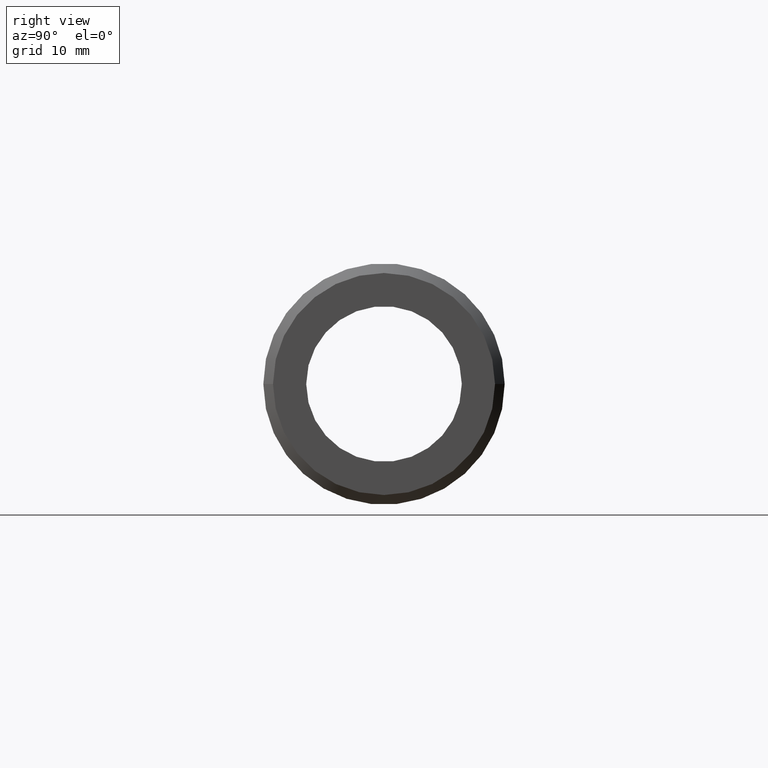
[diagram: clean part render]
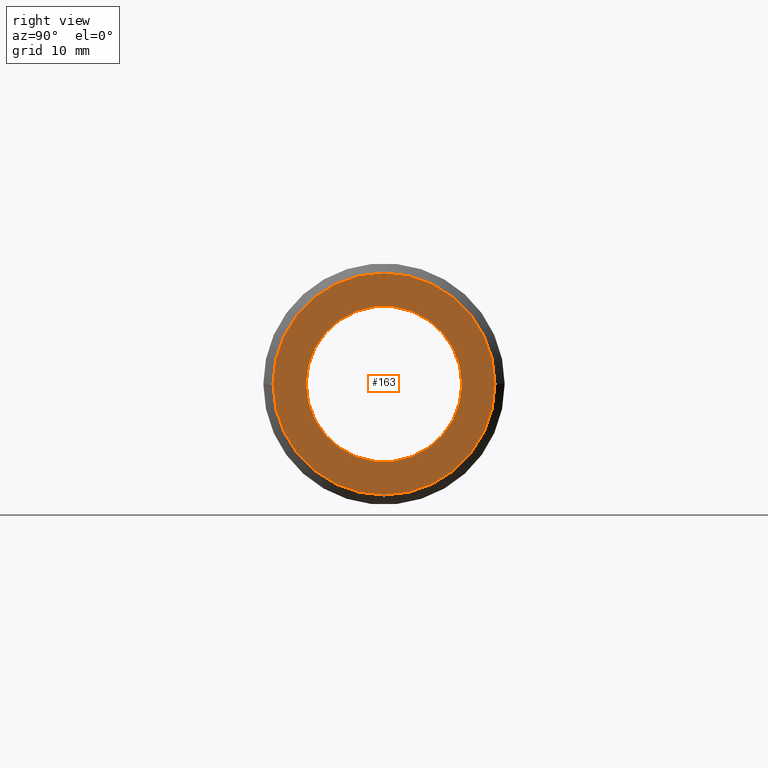
[diagram: same view with one face highlighted and labeled with its STEP entity id]
A machine part, right view. The second image highlights one B-rep face of the part: STEP entity #163.
In plain terms, the highlighted planar face has unit normal (-1, -0, 0).
Its self-contained STEP definition (entity closure, byte-faithful):
#4 = AXIS2_PLACEMENT_3D ( 'NONE', #25, #315, #213 ) ;
#19 = EDGE_LOOP ( 'NONE', ( #246, #199 ) ) ;
#25 = CARTESIAN_POINT ( 'NONE',  ( 33.50000000000000000, 1.212400331155879387E-14, 0.000000000000000000 ) ) ;
#48 = DIRECTION ( 'NONE',  ( 1.000000000000000000, 3.061616997868382648E-16, -0.000000000000000000 ) ) ;
#73 = FACE_BOUND ( 'NONE', #122, .T. ) ;
#83 = CARTESIAN_POINT ( 'NONE',  ( 33.50000000000000000, 1.212400331155879702E-14, 0.000000000000000000 ) ) ;
#96 = AXIS2_PLACEMENT_3D ( 'NONE', #128, #48, #179 ) ;
#99 = EDGE_CURVE ( 'NONE', #306, #328, #185, .T. ) ;
#101 = PLANE ( 'NONE',  #266 ) ;
#113 = EDGE_CURVE ( 'NONE', #328, #306, #241, .T. ) ;
#122 = EDGE_LOOP ( 'NONE', ( #171, #324 ) ) ;
#127 = DIRECTION ( 'NONE',  ( 1.000000000000000000, 3.061616997868382648E-16, 0.000000000000000000 ) ) ;
#128 = CARTESIAN_POINT ( 'NONE',  ( 33.50000000000000000, 1.212400331155879702E-14, 0.000000000000000000 ) ) ;
#133 = CARTESIAN_POINT ( 'NONE',  ( 33.50000000000000000, 8.050000000000011369, 0.000000000000000000 ) ) ;
#136 = CIRCLE ( 'NONE', #336, 11.48999999999998956 ) ;
#140 = EDGE_CURVE ( 'NONE', #201, #284, #211, .T. ) ;
#157 = CARTESIAN_POINT ( 'NONE',  ( 33.50000000000000711, -11.48999999999997712, 0.000000000000000000 ) ) ;
#161 = DIRECTION ( 'NONE',  ( 1.000000000000000000, 3.061616997868382648E-16, -0.000000000000000000 ) ) ;
#163 = ADVANCED_FACE ( 'NONE', ( #238, #73 ), #101, .F. ) ;
#171 = ORIENTED_EDGE ( 'NONE', *, *, #99, .F. ) ;
#176 = DIRECTION ( 'NONE',  ( 3.061616997868382648E-16, -1.000000000000000000, 0.000000000000000000 ) ) ;
#179 = DIRECTION ( 'NONE',  ( 6.039072153095939786E-16, -1.000000000000000000, 0.000000000000000000 ) ) ;
#185 = CIRCLE ( 'NONE', #236, 8.050000000000000711 ) ;
#199 = ORIENTED_EDGE ( 'NONE', *, *, #331, .T. ) ;
#201 = VERTEX_POINT ( 'NONE', #157 ) ;
#210 = DIRECTION ( 'NONE',  ( 0.000000000000000000, 1.000000000000000000, 0.000000000000000000 ) ) ;
#211 = CIRCLE ( 'NONE', #96, 11.48999999999998956 ) ;
#213 = DIRECTION ( 'NONE',  ( 0.000000000000000000, 1.000000000000000000, 0.000000000000000000 ) ) ;
#236 = AXIS2_PLACEMENT_3D ( 'NONE', #340, #127, #210 ) ;
#238 = FACE_OUTER_BOUND ( 'NONE', #19, .T. ) ;
#241 = CIRCLE ( 'NONE', #4, 8.050000000000000711 ) ;
#242 = DIRECTION ( 'NONE',  ( 6.039072153095939786E-16, -1.000000000000000000, 0.000000000000000000 ) ) ;
#246 = ORIENTED_EDGE ( 'NONE', *, *, #140, .T. ) ;
#266 = AXIS2_PLACEMENT_3D ( 'NONE', #297, #321, #176 ) ;
#272 = CARTESIAN_POINT ( 'NONE',  ( 33.50000000000000000, -8.049999999999988276, 9.858406733136194415E-16 ) ) ;
#284 = VERTEX_POINT ( 'NONE', #329 ) ;
#297 = CARTESIAN_POINT ( 'NONE',  ( 33.50000000000000000, 1.212400331155879387E-14, 0.000000000000000000 ) ) ;
#306 = VERTEX_POINT ( 'NONE', #133 ) ;
#315 = DIRECTION ( 'NONE',  ( 1.000000000000000000, 3.061616997868382648E-16, 0.000000000000000000 ) ) ;
#321 = DIRECTION ( 'NONE',  ( -1.000000000000000000, -3.061616997868382648E-16, 0.000000000000000000 ) ) ;
#324 = ORIENTED_EDGE ( 'NONE', *, *, #113, .F. ) ;
#328 = VERTEX_POINT ( 'NONE', #272 ) ;
#329 = CARTESIAN_POINT ( 'NONE',  ( 33.49999999999999289, 11.49000000000000199, 1.468351512177675783E-15 ) ) ;
#331 = EDGE_CURVE ( 'NONE', #284, #201, #136, .T. ) ;
#336 = AXIS2_PLACEMENT_3D ( 'NONE', #83, #161, #242 ) ;
#340 = CARTESIAN_POINT ( 'NONE',  ( 33.50000000000000000, 1.212400331155879387E-14, 0.000000000000000000 ) ) ;